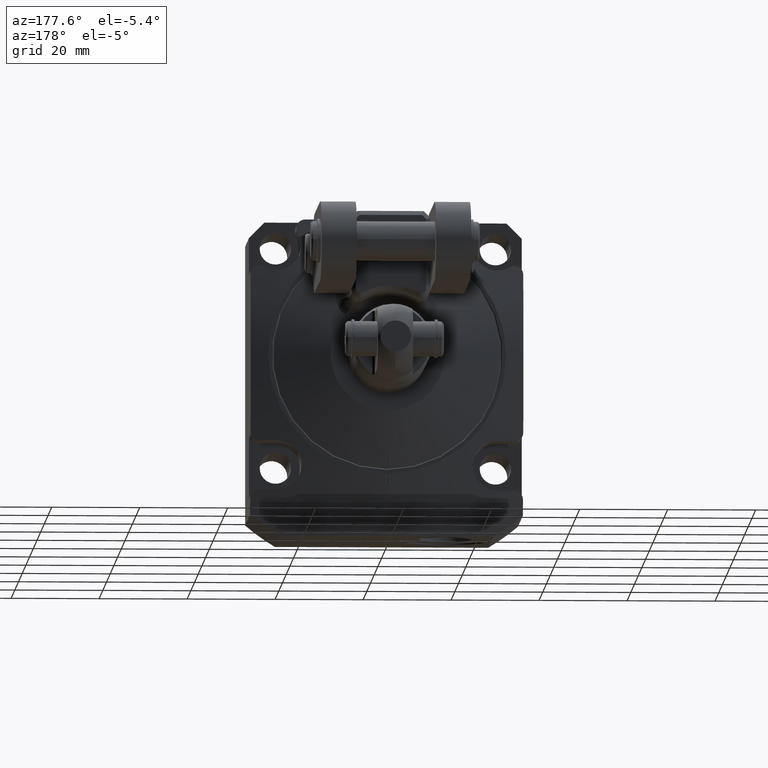
[diagram: clean part render]
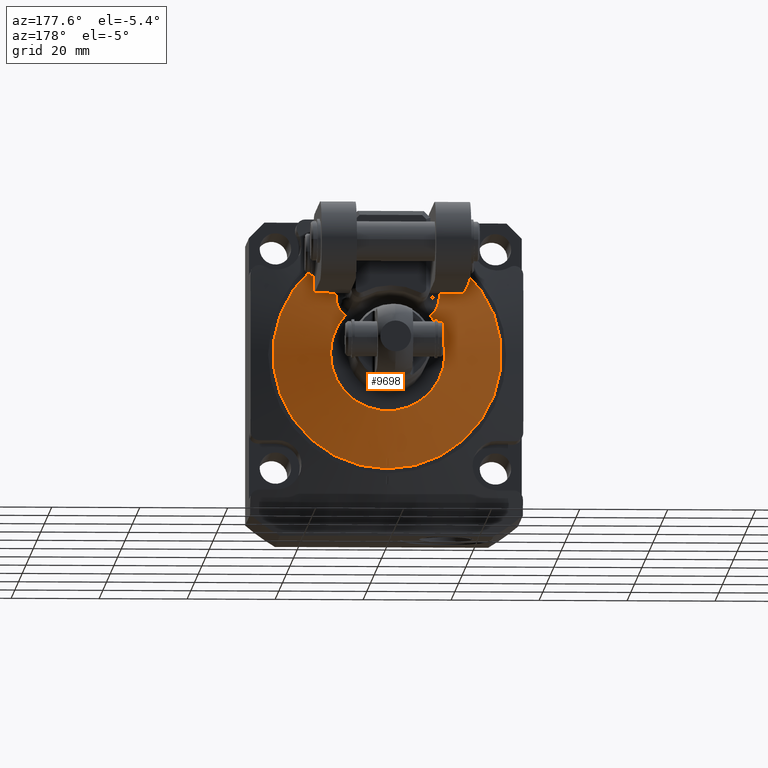
[diagram: same view with one face highlighted and labeled with its STEP entity id]
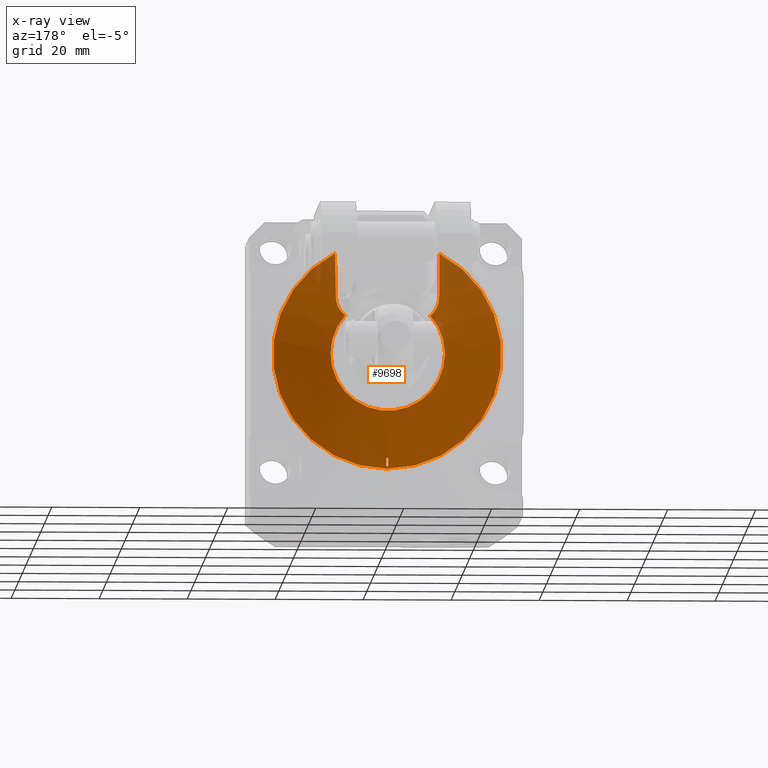
[diagram: x-ray of the same camera — body ghosted, the highlighted face saturated]
A machine part, auxiliary view. The second image highlights one B-rep face of the part: STEP entity #9698.
The next image is the same camera in x-ray: the body ghosted, the highlighted face saturated — about 6% of this face is hidden behind the body in this view.
In plain terms, the highlighted conical surface has half-angle 78 deg.
Its self-contained STEP definition (entity closure, byte-faithful):
#5644=CARTESIAN_POINT('',(4.619344723033E-1,4.555582591003E-1,
5.037043797084E-1));
#5645=CARTESIAN_POINT('',(4.622669766102E-1,4.527038611407E-1,
5.216204462860E-1));
#5646=CARTESIAN_POINT('',(4.629009270009E-1,4.469323764314E-1,
5.570348068672E-1));
#5647=CARTESIAN_POINT('',(4.637529431408E-1,4.382919172197E-1,
6.082468535123E-1));
#5648=CARTESIAN_POINT('',(4.645310355457E-1,4.295454329736E-1,
6.586595436598E-1));
#5649=CARTESIAN_POINT('',(4.652489237689E-1,4.206321275653E-1,
7.088610301471E-1));
#5650=CARTESIAN_POINT('',(4.659218314889E-1,4.114233277800E-1,
7.597202601370E-1));
#5651=CARTESIAN_POINT('',(4.665411990621E-1,4.020866805769E-1,
8.104161919270E-1));
#5652=CARTESIAN_POINT('',(4.670904351388E-1,3.930356012270E-1,
8.588860831411E-1));
#5653=CARTESIAN_POINT('',(4.674437481147E-1,3.866935838798E-1,
8.924484019684E-1));
#5654=CARTESIAN_POINT('',(4.676146023630E-1,3.834898780453E-1,
9.093089872414E-1));
#5659=CARTESIAN_POINT('',(3.799222122433E-1,4.920000007698E-1,
3.432245827569E-1));
#5660=CARTESIAN_POINT('',(3.876324060895E-1,4.899390677556E-1,
3.491534658829E-1));
#5661=CARTESIAN_POINT('',(4.030978480816E-1,4.855708231661E-1,
3.626897941741E-1));
#5662=CARTESIAN_POINT('',(4.256157115357E-1,4.782071324016E-1,
3.894501805988E-1));
#5663=CARTESIAN_POINT('',(4.453272652681E-1,4.701899141106E-1,
4.236838196293E-1));
#5664=CARTESIAN_POINT('',(4.585027024177E-1,4.622955937681E-1,
4.633618468408E-1));
#5665=CARTESIAN_POINT('',(4.616807598494E-1,4.577320580169E-1,
4.900661938175E-1));
#5666=CARTESIAN_POINT('',(4.619344723033E-1,4.555582591003E-1,
5.037043797084E-1));
#5671=CARTESIAN_POINT('',(0.E0,4.92E-1,0.E0));
#5672=DIRECTION('',(0.E0,1.E0,0.E0));
#5673=DIRECTION('',(7.420358275613E-1,0.E0,6.703602245177E-1));
#5674=AXIS2_PLACEMENT_3D('',#5671,#5672,#5673);
#5679=CARTESIAN_POINT('',(-4.619344723107E-1,4.555582591449E-1,
5.037043797482E-1));
#5680=CARTESIAN_POINT('',(-4.616806751207E-1,4.577327504840E-1,
4.900618770334E-1));
#5681=CARTESIAN_POINT('',(-4.585011570547E-1,4.622975734660E-1,
4.633503456754E-1));
#5682=CARTESIAN_POINT('',(-4.453169172143E-1,4.701950868794E-1,
4.236593824522E-1));
#5683=CARTESIAN_POINT('',(-4.256011084162E-1,4.782122506874E-1,
3.894304167662E-1));
#5684=CARTESIAN_POINT('',(-4.030899697008E-1,4.855730764770E-1,
3.626827031919E-1));
#5685=CARTESIAN_POINT('',(-3.876294028503E-1,4.899398708330E-1,
3.491511526756E-1));
#5686=CARTESIAN_POINT('',(-3.799222141008E-1,4.920000008003E-1,
3.432245808364E-1));
#5691=CARTESIAN_POINT('',(-4.676146017522E-1,3.834898780471E-1,
9.093089875759E-1));
#5692=CARTESIAN_POINT('',(-4.674433724031E-1,3.867006171038E-1,
8.924113890024E-1));
#5693=CARTESIAN_POINT('',(-4.670894825995E-1,3.930520620288E-1,
8.587985240915E-1));
#5694=CARTESIAN_POINT('',(-4.665405376017E-1,4.020968853075E-1,
8.103609945195E-1));
#5695=CARTESIAN_POINT('',(-4.659213740729E-1,4.114299020345E-1,
7.596842720193E-1));
#5696=CARTESIAN_POINT('',(-4.652482831476E-1,4.206405614804E-1,
7.088141023604E-1));
#5697=CARTESIAN_POINT('',(-4.645302334063E-1,4.295549230660E-1,
6.586055162710E-1));
#5698=CARTESIAN_POINT('',(-4.637521709133E-1,4.383000894756E-1,
6.081990046155E-1));
#5699=CARTESIAN_POINT('',(-4.629004236125E-1,4.469370800802E-1,
5.570061948956E-1));
#5700=CARTESIAN_POINT('',(-4.622667809521E-1,4.527055339905E-1,
5.216099532932E-1));
#5701=CARTESIAN_POINT('',(-4.619344723107E-1,4.555582591449E-1,
5.037043797482E-1));
#5706=CARTESIAN_POINT('',(0.E0,3.834898752675E-1,0.E0));
#5707=DIRECTION('',(0.E0,-1.E0,0.E0));
#5708=DIRECTION('',(-4.573247895818E-1,0.E0,8.892997452119E-1));
#5709=AXIS2_PLACEMENT_3D('',#5706,#5707,#5708);
#5714=CARTESIAN_POINT('',(0.E0,3.834898752675E-1,0.E0));
#5715=DIRECTION('',(0.E0,-1.E0,0.E0));
#5716=DIRECTION('',(0.E0,0.E0,-1.E0));
#5717=AXIS2_PLACEMENT_3D('',#5714,#5715,#5716);
#5722=CARTESIAN_POINT('',(9.574683658721E-3,3.895732826849E-1,
-9.938336976822E-1));
#5723=CARTESIAN_POINT('',(9.574487616531E-3,3.909598666762E-1,
-9.873100320476E-1));
#5724=CARTESIAN_POINT('',(9.574088358256E-3,3.937294297472E-1,
-9.742796495658E-1));
#5725=CARTESIAN_POINT('',(9.573466729327E-3,3.978729592394E-1,
-9.547849221254E-1));
#5726=CARTESIAN_POINT('',(9.573036273448E-3,4.006281018860E-1,
-9.418223346280E-1));
#5727=CARTESIAN_POINT('',(9.572816800216E-3,4.020038705489E-1,
-9.353495152295E-1));
#5732=CARTESIAN_POINT('',(-9.572816800216E-3,4.020038705489E-1,
-9.353495152294E-1));
#5733=CARTESIAN_POINT('',(-9.573036273448E-3,4.006281018860E-1,
-9.418223346280E-1));
#5734=CARTESIAN_POINT('',(-9.573466729327E-3,3.978729592394E-1,
-9.547849221254E-1));
#5735=CARTESIAN_POINT('',(-9.574088358256E-3,3.937294297472E-1,
-9.742796495658E-1));
#5736=CARTESIAN_POINT('',(-9.574487616530E-3,3.909598666762E-1,
-9.873100320476E-1));
#5737=CARTESIAN_POINT('',(-9.574683658721E-3,3.895732826849E-1,
-9.938336976822E-1));
#6342=CARTESIAN_POINT('',(9.572816800216E-3,4.020038705489E-1,
-9.353495152295E-1));
#6343=CARTESIAN_POINT('',(9.572764943205E-3,4.023289363916E-1,
-9.338201211172E-1));
#6344=CARTESIAN_POINT('',(8.890767281355E-3,4.029095315962E-1,
-9.310958575734E-1));
#6345=CARTESIAN_POINT('',(6.067910273783E-3,4.036436677356E-1,
-9.276661503360E-1));
#6346=CARTESIAN_POINT('',(2.146268900563E-3,4.040261007524E-1,
-9.258853825239E-1));
#6347=CARTESIAN_POINT('',(-2.146061444208E-3,4.040260987055E-1,
-9.258853924041E-1));
#6348=CARTESIAN_POINT('',(-6.067645696734E-3,4.036437350617E-1,
-9.276658357703E-1));
#6349=CARTESIAN_POINT('',(-8.891129900026E-3,4.029094123445E-1,
-9.310964153571E-1));
#6350=CARTESIAN_POINT('',(-9.572764951513E-3,4.023288843130E-1,
-9.338203661407E-1));
#6351=CARTESIAN_POINT('',(-9.572816800216E-3,4.020038705489E-1,
-9.353495152294E-1));
#6364=CARTESIAN_POINT('',(-9.574683658721E-3,3.895732826849E-1,
-9.938336976822E-1));
#6365=CARTESIAN_POINT('',(-9.574729430976E-3,3.892495407559E-1,
-9.953568539493E-1));
#6366=CARTESIAN_POINT('',(-8.898728588223E-3,3.886726468484E-1,
-9.980779229494E-1));
#6367=CARTESIAN_POINT('',(-6.070860705253E-3,3.879458961003E-1,
-1.001519692422E0));
#6368=CARTESIAN_POINT('',(-2.148469144319E-3,3.875707043288E-1,
-1.003301882611E0));
#6369=CARTESIAN_POINT('',(2.149852949619E-3,3.875707981629E-1,
-1.003301436786E0));
#6370=CARTESIAN_POINT('',(6.070957843357E-3,3.879459383293E-1,
-1.001519492266E0));
#6371=CARTESIAN_POINT('',(8.898843923931E-3,3.886726888983E-1,
-9.980777243022E-1));
#6372=CARTESIAN_POINT('',(9.574729428839E-3,3.892495558735E-1,
-9.953567828234E-1));
#6373=CARTESIAN_POINT('',(9.574683658721E-3,3.895732826849E-1,
-9.938336976822E-1));
#8072=CARTESIAN_POINT('',(0.E0,3.834898752675E-1,-1.0225E0));
#8073=VERTEX_POINT('',#8072);
#8078=VERTEX_POINT('',#5644);
#8079=VERTEX_POINT('',#5654);
#8080=VERTEX_POINT('',#5659);
#8097=VERTEX_POINT('',#5691);
#8098=VERTEX_POINT('',#5701);
#8100=VERTEX_POINT('',#5686);
#8613=VERTEX_POINT('',#5732);
#8614=VERTEX_POINT('',#5737);
#8615=VERTEX_POINT('',#5722);
#8616=VERTEX_POINT('',#5727);
#9670=CARTESIAN_POINT('',(0.E0,4.377449377493E-1,0.E0));
#9671=DIRECTION('',(0.E0,-1.E0,0.E0));
#9672=DIRECTION('',(0.E0,0.E0,1.E0));
#9673=AXIS2_PLACEMENT_3D('',#9670,#9671,#9672);
#9674=CONICAL_SURFACE('',#9673,7.672499994562E-1,7.8E1);
#9675=ORIENTED_EDGE('',*,*,#9544,.F.);
#9676=ORIENTED_EDGE('',*,*,#9659,.F.);
#9678=ORIENTED_EDGE('',*,*,#9677,.T.);
#9680=ORIENTED_EDGE('',*,*,#9679,.F.);
#9681=ORIENTED_EDGE('',*,*,#9379,.F.);
#9683=ORIENTED_EDGE('',*,*,#9682,.T.);
#9685=ORIENTED_EDGE('',*,*,#9684,.T.);
#9686=EDGE_LOOP('',(#9675,#9676,#9678,#9680,#9681,#9683,#9685));
#9687=FACE_OUTER_BOUND('',#9686,.F.);
#9689=ORIENTED_EDGE('',*,*,#9688,.F.);
#9691=ORIENTED_EDGE('',*,*,#9690,.F.);
#9693=ORIENTED_EDGE('',*,*,#9692,.F.);
#9695=ORIENTED_EDGE('',*,*,#9694,.F.);
#9696=EDGE_LOOP('',(#9689,#9691,#9693,#9695));
#9697=FACE_BOUND('',#9696,.F.);
#5655=B_SPLINE_CURVE_WITH_KNOTS('',3,(#5644,#5645,#5646,#5647,#5648,#5649,#5650,
#5651,#5652,#5653,#5654),.UNSPECIFIED.,.F.,.F.,(4,1,1,1,1,1,1,1,4),(0.E0,
1.25E-1,2.5E-1,3.75E-1,5.E-1,6.25E-1,7.5E-1,8.75E-1,1.E0),.UNSPECIFIED.);
#5667=B_SPLINE_CURVE_WITH_KNOTS('',3,(#5659,#5660,#5661,#5662,#5663,#5664,#5665,
#5666),.UNSPECIFIED.,.F.,.F.,(4,1,1,1,1,4),(0.E0,2.E-1,4.E-1,6.E-1,8.E-1,1.E0),
.UNSPECIFIED.);
#5675=CIRCLE('',#5674,5.12E-1);
#5687=B_SPLINE_CURVE_WITH_KNOTS('',3,(#5679,#5680,#5681,#5682,#5683,#5684,#5685,
#5686),.UNSPECIFIED.,.F.,.F.,(4,1,1,1,1,4),(0.E0,2.E-1,4.E-1,6.E-1,8.E-1,1.E0),
.UNSPECIFIED.);
#5702=B_SPLINE_CURVE_WITH_KNOTS('',3,(#5691,#5692,#5693,#5694,#5695,#5696,#5697,
#5698,#5699,#5700,#5701),.UNSPECIFIED.,.F.,.F.,(4,1,1,1,1,1,1,1,4),(0.E0,
1.25E-1,2.5E-1,3.75E-1,5.E-1,6.25E-1,7.5E-1,8.75E-1,1.E0),.UNSPECIFIED.);
#5710=CIRCLE('',#5709,1.0225E0);
#5718=CIRCLE('',#5717,1.0225E0);
#5728=B_SPLINE_CURVE_WITH_KNOTS('',3,(#5722,#5723,#5724,#5725,#5726,#5727),
.UNSPECIFIED.,.F.,.F.,(4,1,1,4),(0.E0,3.333333333333E-1,6.666666666667E-1,1.E0),
.UNSPECIFIED.);
#5738=B_SPLINE_CURVE_WITH_KNOTS('',3,(#5732,#5733,#5734,#5735,#5736,#5737),
.UNSPECIFIED.,.F.,.F.,(4,1,1,4),(0.E0,3.333333333333E-1,6.666666666667E-1,1.E0),
.UNSPECIFIED.);
#6352=B_SPLINE_CURVE_WITH_KNOTS('',3,(#6342,#6343,#6344,#6345,#6346,#6347,#6348,
#6349,#6350,#6351),.UNSPECIFIED.,.F.,.F.,(4,1,1,1,1,1,1,4),(0.E0,
1.428571428571E-1,2.857142857143E-1,4.285714285714E-1,5.714285714286E-1,
7.142857142857E-1,8.571428571429E-1,1.E0),.UNSPECIFIED.);
#6374=B_SPLINE_CURVE_WITH_KNOTS('',3,(#6364,#6365,#6366,#6367,#6368,#6369,#6370,
#6371,#6372,#6373),.UNSPECIFIED.,.F.,.F.,(4,1,1,1,1,1,1,4),(0.E0,
1.428571428571E-1,2.857142857143E-1,4.285714285714E-1,5.714285714286E-1,
7.142857142857E-1,8.571428571429E-1,1.E0),.UNSPECIFIED.);
#9379=EDGE_CURVE('',#8097,#8098,#5702,.T.);
#9544=EDGE_CURVE('',#8078,#8079,#5655,.T.);
#9659=EDGE_CURVE('',#8080,#8078,#5667,.T.);
#9677=EDGE_CURVE('',#8080,#8100,#5675,.T.);
#9679=EDGE_CURVE('',#8098,#8100,#5687,.T.);
#9682=EDGE_CURVE('',#8097,#8073,#5710,.T.);
#9684=EDGE_CURVE('',#8073,#8079,#5718,.T.);
#9688=EDGE_CURVE('',#8616,#8613,#6352,.T.);
#9690=EDGE_CURVE('',#8615,#8616,#5728,.T.);
#9692=EDGE_CURVE('',#8614,#8615,#6374,.T.);
#9694=EDGE_CURVE('',#8613,#8614,#5738,.T.);
#9698=ADVANCED_FACE('',(#9687,#9697),#9674,.T.);